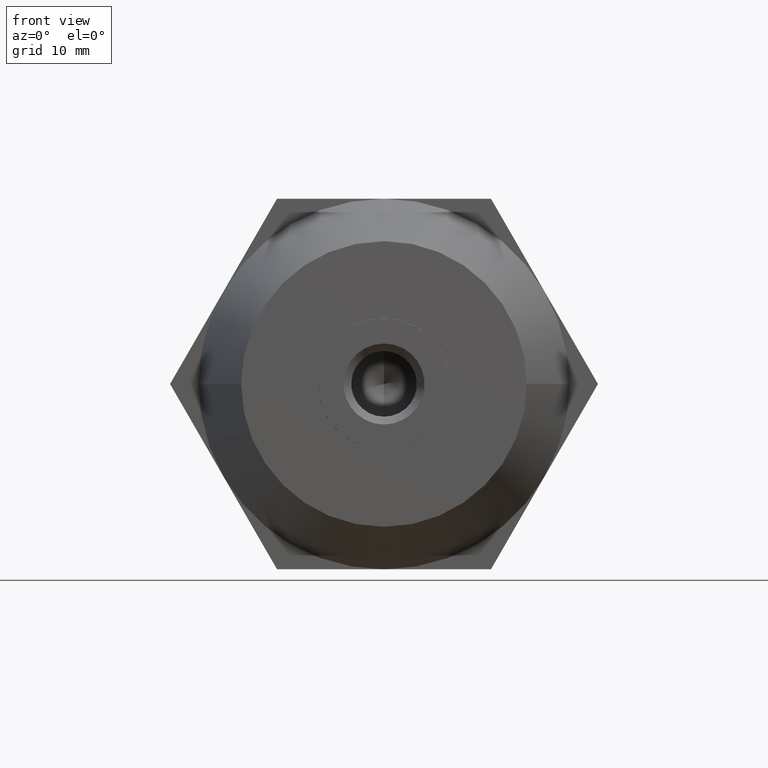
[diagram: clean part render]
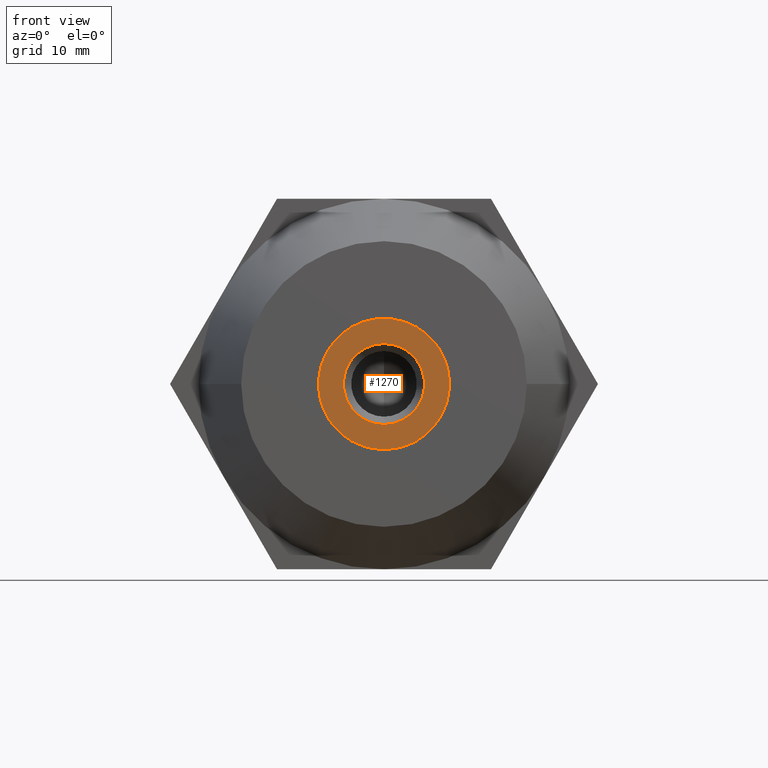
[diagram: same view with one face highlighted and labeled with its STEP entity id]
A machine part, front view. The second image highlights one B-rep face of the part: STEP entity #1270.
In plain terms, the highlighted planar face has unit normal (-0, -1, 0).
Its self-contained STEP definition (entity closure, byte-faithful):
#58 = CARTESIAN_POINT ( 'NONE',  ( -4.250000000000000000, 17.00000000000000000, -7.361215932167730200 ) ) ;
#59 = DIRECTION ( 'NONE',  ( -0.0000000000000000000, -1.000000000000000000, -0.0000000000000000000 ) ) ;
#144 = EDGE_LOOP ( 'NONE', ( #2660, #1865 ) ) ;
#201 = CARTESIAN_POINT ( 'NONE',  ( 0.0000000000000000000, 17.00000000000000000, 0.0000000000000000000 ) ) ;
#206 = DIRECTION ( 'NONE',  ( 0.0000000000000000000, 1.000000000000000000, 0.0000000000000000000 ) ) ;
#210 = DIRECTION ( 'NONE',  ( 0.0000000000000000000, 1.000000000000000000, 0.0000000000000000000 ) ) ;
#211 = DIRECTION ( 'NONE',  ( -0.0000000000000000000, -1.000000000000000000, -0.0000000000000000000 ) ) ;
#245 = VERTEX_POINT ( 'NONE', #3480 ) ;
#278 = CIRCLE ( 'NONE', #1660, 8.500000000000000000 ) ;
#318 = AXIS2_PLACEMENT_3D ( 'NONE', #3099, #59, #365 ) ;
#365 = DIRECTION ( 'NONE',  ( 0.0000000000000000000, 0.0000000000000000000, 1.000000000000000000 ) ) ;
#435 = ORIENTED_EDGE ( 'NONE', *, *, #3013, .F. ) ;
#495 = EDGE_CURVE ( 'NONE', #1498, #3696, #278, .T. ) ;
#527 = CARTESIAN_POINT ( 'NONE',  ( 0.0000000000000000000, 17.00000000000000000, 0.0000000000000000000 ) ) ;
#614 = CIRCLE ( 'NONE', #2017, 8.500000000000000000 ) ;
#674 = CIRCLE ( 'NONE', #815, 8.500000000000000000 ) ;
#680 = DIRECTION ( 'NONE',  ( 0.0000000000000000000, 0.0000000000000000000, 1.000000000000000000 ) ) ;
#761 = ORIENTED_EDGE ( 'NONE', *, *, #3053, .F. ) ;
#815 = AXIS2_PLACEMENT_3D ( 'NONE', #2268, #2873, #2254 ) ;
#819 = DIRECTION ( 'NONE',  ( 0.0000000000000000000, 0.0000000000000000000, 1.000000000000000000 ) ) ;
#827 = CARTESIAN_POINT ( 'NONE',  ( 4.250000000000000000, 17.00000000000000000, -7.361215932167730200 ) ) ;
#848 = EDGE_CURVE ( 'NONE', #3852, #1527, #3687, .T. ) ;
#881 = CARTESIAN_POINT ( 'NONE',  ( 0.0000000000000000000, 17.00000000000000000, 5.250000000000000000 ) ) ;
#945 = CIRCLE ( 'NONE', #2906, 5.250000000000000000 ) ;
#1002 = CIRCLE ( 'NONE', #318, 8.500000000000000000 ) ;
#1117 = EDGE_CURVE ( 'NONE', #1527, #3852, #945, .T. ) ;
#1176 = CIRCLE ( 'NONE', #2743, 8.500000000000000000 ) ;
#1265 = CARTESIAN_POINT ( 'NONE',  ( 0.0000000000000000000, 17.00000000000000000, 0.0000000000000000000 ) ) ;
#1270 = ADVANCED_FACE ( 'NONE', ( #2229, #3389 ), #3881, .T. ) ;
#1273 = CARTESIAN_POINT ( 'NONE',  ( 0.0000000000000000000, 17.00000000000000000, 0.0000000000000000000 ) ) ;
#1363 = DIRECTION ( 'NONE',  ( 0.0000000000000000000, 0.0000000000000000000, 1.000000000000000000 ) ) ;
#1367 = ORIENTED_EDGE ( 'NONE', *, *, #3772, .F. ) ;
#1421 = CARTESIAN_POINT ( 'NONE',  ( -8.500000000000000000, 17.00000000000000000, 0.0000000000000000000 ) ) ;
#1447 = DIRECTION ( 'NONE',  ( -1.776356839400250500E-015, 0.0000000000000000000, 1.000000000000000000 ) ) ;
#1491 = EDGE_CURVE ( 'NONE', #3696, #2809, #1002, .T. ) ;
#1498 = VERTEX_POINT ( 'NONE', #3115 ) ;
#1516 = AXIS2_PLACEMENT_3D ( 'NONE', #527, #2048, #1447 ) ;
#1527 = VERTEX_POINT ( 'NONE', #2857 ) ;
#1599 = EDGE_CURVE ( 'NONE', #2577, #245, #674, .T. ) ;
#1660 = AXIS2_PLACEMENT_3D ( 'NONE', #3610, #3269, #3912 ) ;
#1680 = EDGE_LOOP ( 'NONE', ( #435, #1881, #1889, #761, #1367, #3094, #2172 ) ) ;
#1708 = VERTEX_POINT ( 'NONE', #827 ) ;
#1738 = EDGE_CURVE ( 'NONE', #2758, #2577, #614, .T. ) ;
#1763 = DIRECTION ( 'NONE',  ( 0.0000000000000000000, 0.0000000000000000000, 1.000000000000000000 ) ) ;
#1865 = ORIENTED_EDGE ( 'NONE', *, *, #1117, .F. ) ;
#1881 = ORIENTED_EDGE ( 'NONE', *, *, #1491, .F. ) ;
#1889 = ORIENTED_EDGE ( 'NONE', *, *, #495, .F. ) ;
#1950 = CARTESIAN_POINT ( 'NONE',  ( 0.0000000000000000000, 17.00000000000000000, 0.0000000000000000000 ) ) ;
#2017 = AXIS2_PLACEMENT_3D ( 'NONE', #1265, #3423, #680 ) ;
#2032 = DIRECTION ( 'NONE',  ( 0.0000000000000000000, 0.0000000000000000000, 1.000000000000000000 ) ) ;
#2048 = DIRECTION ( 'NONE',  ( -0.0000000000000000000, -1.000000000000000000, -0.0000000000000000000 ) ) ;
#2172 = ORIENTED_EDGE ( 'NONE', *, *, #1738, .F. ) ;
#2229 = FACE_OUTER_BOUND ( 'NONE', #1680, .T. ) ;
#2254 = DIRECTION ( 'NONE',  ( 2.664535259100376100E-015, 0.0000000000000000000, 1.000000000000000000 ) ) ;
#2268 = CARTESIAN_POINT ( 'NONE',  ( 0.0000000000000000000, 17.00000000000000000, 0.0000000000000000000 ) ) ;
#2361 = AXIS2_PLACEMENT_3D ( 'NONE', #3608, #206, #1763 ) ;
#2577 = VERTEX_POINT ( 'NONE', #58 ) ;
#2603 = AXIS2_PLACEMENT_3D ( 'NONE', #1950, #2875, #1363 ) ;
#2660 = ORIENTED_EDGE ( 'NONE', *, *, #848, .F. ) ;
#2740 = DIRECTION ( 'NONE',  ( 0.0000000000000000000, 1.000000000000000000, 0.0000000000000000000 ) ) ;
#2743 = AXIS2_PLACEMENT_3D ( 'NONE', #201, #211, #819 ) ;
#2758 = VERTEX_POINT ( 'NONE', #1421 ) ;
#2809 = VERTEX_POINT ( 'NONE', #3575 ) ;
#2857 = CARTESIAN_POINT ( 'NONE',  ( 6.429395695523604200E-016, 17.00000000000000000, -5.250000000000000000 ) ) ;
#2873 = DIRECTION ( 'NONE',  ( -0.0000000000000000000, -1.000000000000000000, -0.0000000000000000000 ) ) ;
#2875 = DIRECTION ( 'NONE',  ( -0.0000000000000000000, -1.000000000000000000, -0.0000000000000000000 ) ) ;
#2906 = AXIS2_PLACEMENT_3D ( 'NONE', #2930, #210, #2032 ) ;
#2930 = CARTESIAN_POINT ( 'NONE',  ( 0.0000000000000000000, 17.00000000000000000, 0.0000000000000000000 ) ) ;
#3002 = AXIS2_PLACEMENT_3D ( 'NONE', #1273, #2740, #3363 ) ;
#3013 = EDGE_CURVE ( 'NONE', #2809, #2758, #1176, .T. ) ;
#3053 = EDGE_CURVE ( 'NONE', #1708, #1498, #3952, .T. ) ;
#3094 = ORIENTED_EDGE ( 'NONE', *, *, #1599, .F. ) ;
#3099 = CARTESIAN_POINT ( 'NONE',  ( 0.0000000000000000000, 17.00000000000000000, 0.0000000000000000000 ) ) ;
#3115 = CARTESIAN_POINT ( 'NONE',  ( 8.500000000000000000, 17.00000000000000000, -3.004629197474319600E-015 ) ) ;
#3269 = DIRECTION ( 'NONE',  ( -0.0000000000000000000, -1.000000000000000000, -0.0000000000000000000 ) ) ;
#3278 = CIRCLE ( 'NONE', #2603, 8.500000000000000000 ) ;
#3363 = DIRECTION ( 'NONE',  ( 0.0000000000000000000, 0.0000000000000000000, 1.000000000000000000 ) ) ;
#3389 = FACE_BOUND ( 'NONE', #144, .T. ) ;
#3423 = DIRECTION ( 'NONE',  ( -0.0000000000000000000, -1.000000000000000000, -0.0000000000000000000 ) ) ;
#3480 = CARTESIAN_POINT ( 'NONE',  ( 0.0000000000000000000, 17.00000000000000000, -8.500000000000001800 ) ) ;
#3575 = CARTESIAN_POINT ( 'NONE',  ( -4.250000000000000000, 17.00000000000000000, 7.361215932167730200 ) ) ;
#3608 = CARTESIAN_POINT ( 'NONE',  ( 0.0000000000000000000, 17.00000000000000000, 0.0000000000000000000 ) ) ;
#3610 = CARTESIAN_POINT ( 'NONE',  ( 0.0000000000000000000, 17.00000000000000000, 0.0000000000000000000 ) ) ;
#3687 = CIRCLE ( 'NONE', #3002, 5.250000000000000000 ) ;
#3696 = VERTEX_POINT ( 'NONE', #3854 ) ;
#3772 = EDGE_CURVE ( 'NONE', #245, #1708, #3278, .T. ) ;
#3852 = VERTEX_POINT ( 'NONE', #881 ) ;
#3854 = CARTESIAN_POINT ( 'NONE',  ( 4.250000000000000000, 17.00000000000000000, 7.361215932167730200 ) ) ;
#3881 = PLANE ( 'NONE',  #2361 ) ;
#3912 = DIRECTION ( 'NONE',  ( 3.552713678800500900E-015, 0.0000000000000000000, 1.000000000000000000 ) ) ;
#3952 = CIRCLE ( 'NONE', #1516, 8.500000000000000000 ) ;